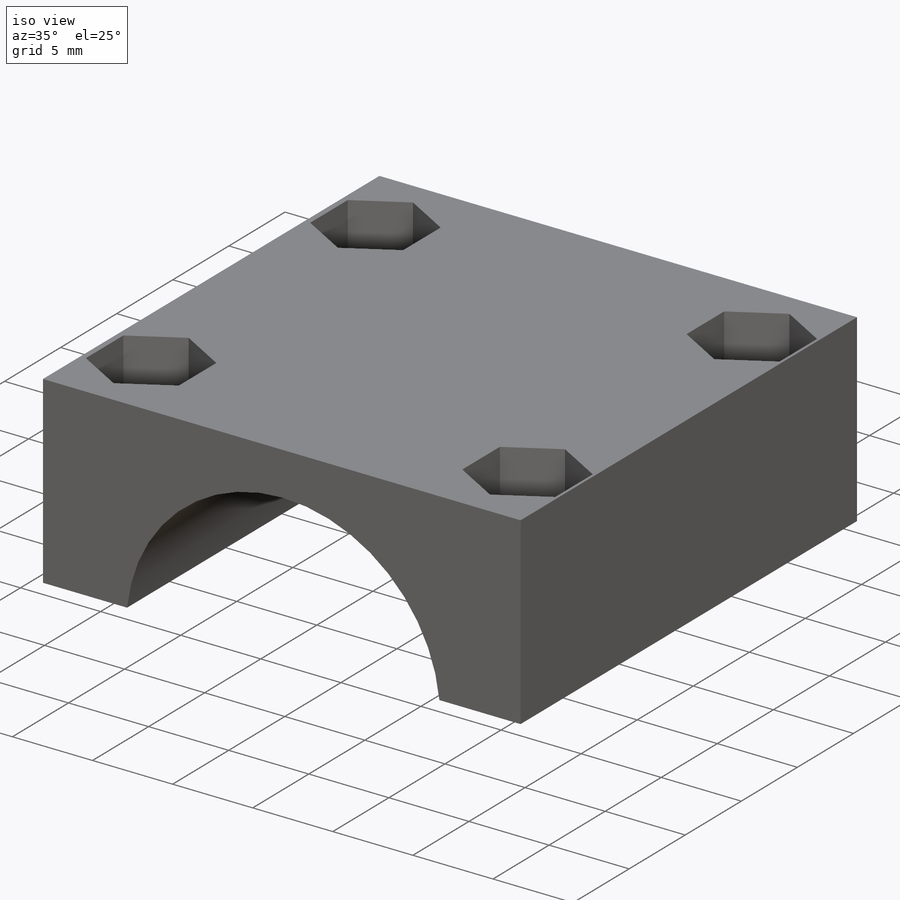
[diagram: iso view]
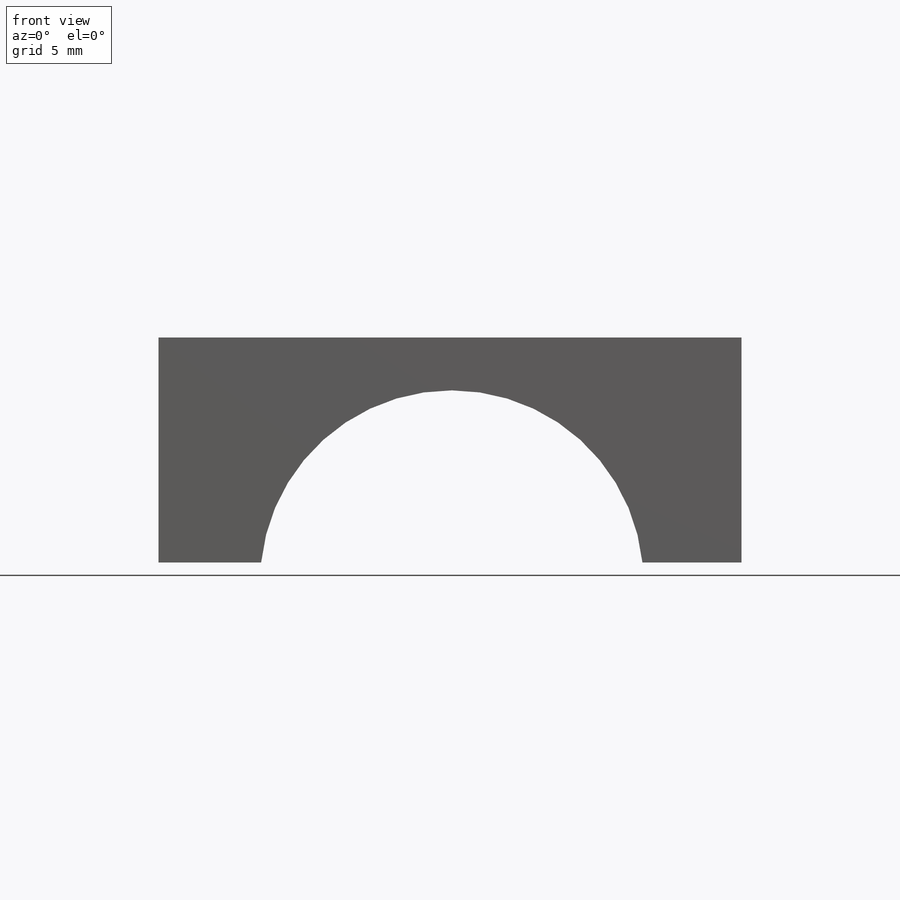
[diagram: front view]
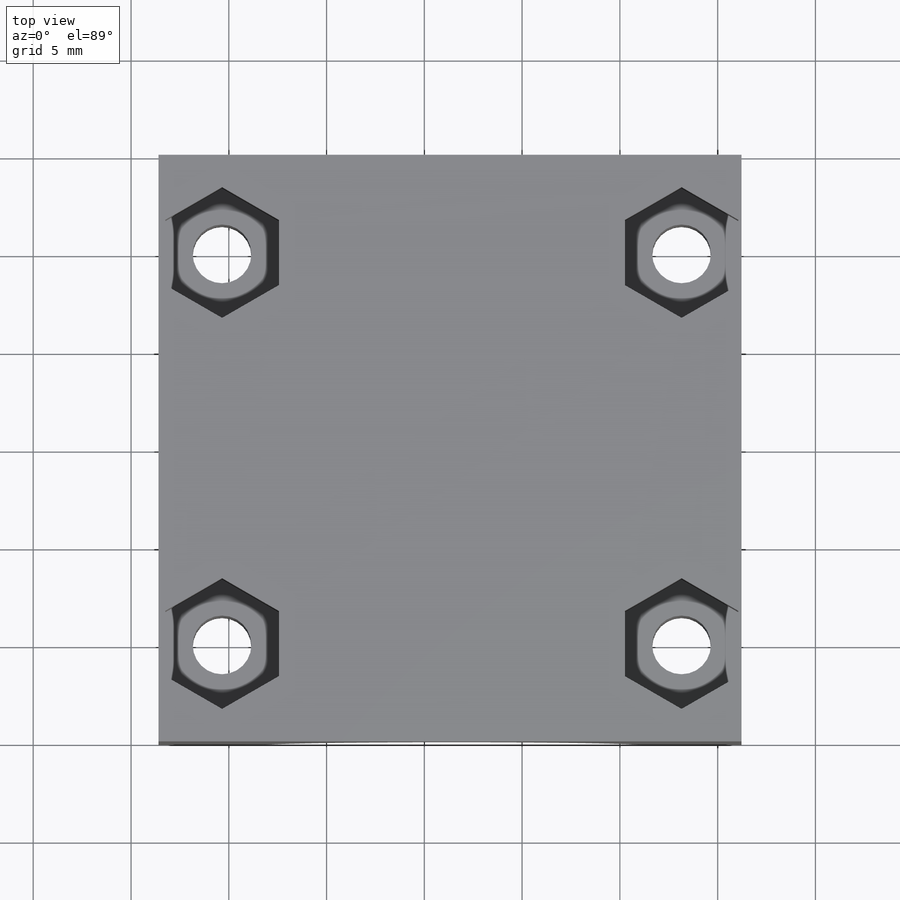
[diagram: top view]
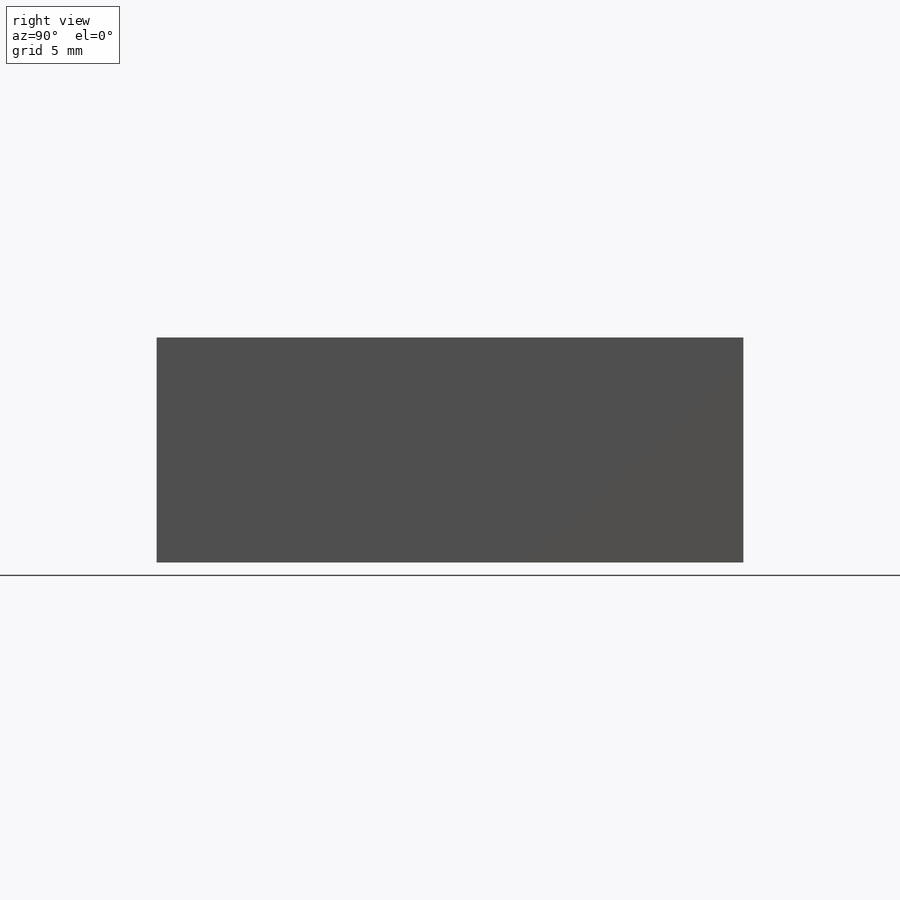
[diagram: right view]
SOLIDWORKS PART (.sldprt)
format: sldprt  version: not decoded by parser v0  size: 218,624 bytes
history: native  units: mm
features: sketch x4, plane x3, material x1, extrude x1, hole x1, cut_extrude x1 (+10 scaffold rows collapsed)
feature tree (21):
  scaffold x10  (default folders/planes/origin — collapsed)
  material  "Material <nicht angegeben>"
  plane  "Ebene vorne"
  plane  "Ebene oben"
  plane  "Ebene rechts"
  sketch  "Skizze1"  dims[D1=11.5mm]
  extrude  "Aufsatz-Linear austragen1"  Depth=30mm
  hole  "Ø3.0 (3) Durchmesser Bohrung1"  Diameter=3mm Depth=11.5mm
  sketch  "Skizze3"  dims[D1=12.7mm]
  sketch  "Skizze2"  dims[hole-wizard template sketch: 59 standard entries collapsed; hole parameters kept: c18.Bohrerdurchmesser=3.0mm c18.Bohrungstiefe=11.5mm]
  sketch  "Skizze4"  dims[D1=2.8mm]
  cut_extrude  "Schnitt-Linear austragen1"  Depth=4mm
decode coverage: 7 of 7 modeling features carry decoded parameters
note: ~ marks probable driven/reference dimensions
note: suppression state not decoded; provenance and decode notes live in map.json
